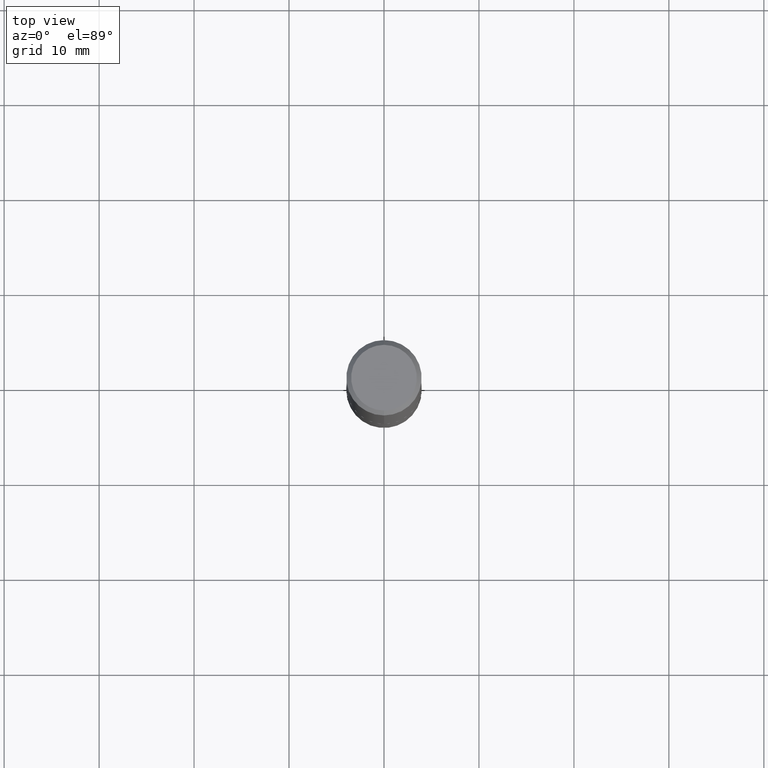
[diagram: clean part render]
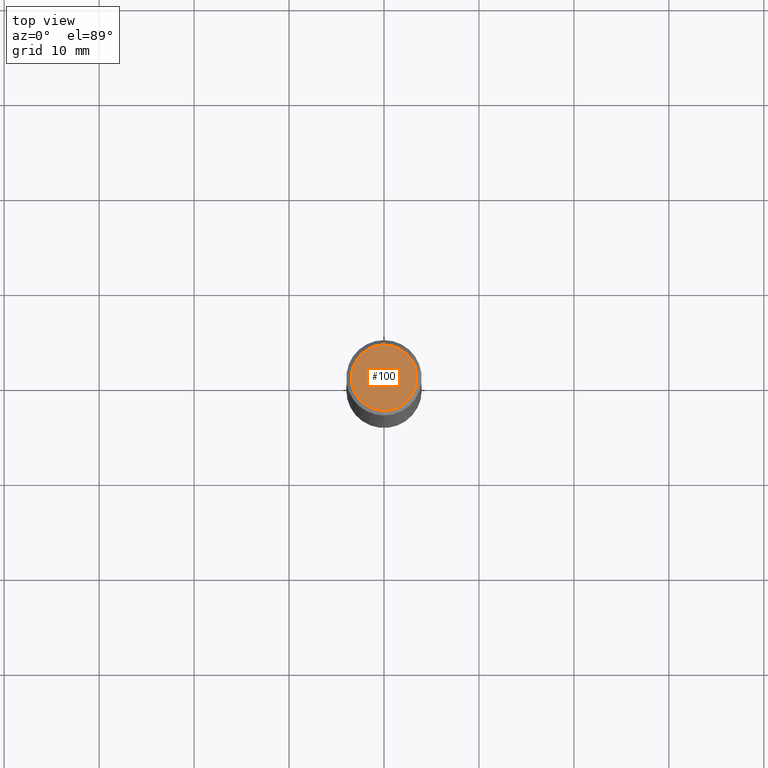
[diagram: same view with one face highlighted and labeled with its STEP entity id]
A machine part, top view. The second image highlights one B-rep face of the part: STEP entity #100.
In plain terms, the highlighted planar face has unit normal (0, -0, -1).
Its self-contained STEP definition (entity closure, byte-faithful):
#44 = DIRECTION ( 'NONE',  ( -6.982962677686265922E-15, -1.000000000000000000, 3.491900563592034843E-15 ) ) ;
#100 = ADVANCED_FACE ( 'NONE', ( #270 ), #405, .F. ) ;
#120 = CIRCLE ( 'NONE', #176, 0.1362500000000001210 ) ;
#150 = DIRECTION ( 'NONE',  ( 2.445176063107630653E-29, -3.491900563592034843E-15, -1.000000000000000000 ) ) ;
#172 = CARTESIAN_POINT ( 'NONE',  ( 1.021258291611617059E-15, 0.1362500000000001210, -5.653530947094876156E-16 ) ) ;
#176 = AXIS2_PLACEMENT_3D ( 'NONE', #213, #367, #44 ) ;
#190 = VERTEX_POINT ( 'NONE', #172 ) ;
#199 = EDGE_CURVE ( 'NONE', #190, #359, #120, .T. ) ;
#213 = CARTESIAN_POINT ( 'NONE',  ( 2.190428889620163364E-45, -3.128101894001013777E-31, -8.958164292007245599E-17 ) ) ;
#227 = EDGE_LOOP ( 'NONE', ( #276, #318 ) ) ;
#270 = FACE_OUTER_BOUND ( 'NONE', #227, .T. ) ;
#274 = CIRCLE ( 'NONE', #385, 0.1362500000000001210 ) ;
#275 = DIRECTION ( 'NONE',  ( 6.982962677686265922E-15, 1.000000000000000000, -3.491900563592034843E-15 ) ) ;
#276 = ORIENTED_EDGE ( 'NONE', *, *, #199, .T. ) ;
#315 = CARTESIAN_POINT ( 'NONE',  ( 2.190428889620163364E-45, -3.128101894001013777E-31, -8.958164292007245599E-17 ) ) ;
#318 = ORIENTED_EDGE ( 'NONE', *, *, #364, .T. ) ;
#354 = DIRECTION ( 'NONE',  ( -6.982962677686265922E-15, -1.000000000000000000, 3.491900563592034843E-15 ) ) ;
#359 = VERTEX_POINT ( 'NONE', #389 ) ;
#364 = EDGE_CURVE ( 'NONE', #359, #190, #274, .T. ) ;
#365 = AXIS2_PLACEMENT_3D ( 'NONE', #375, #150, #275 ) ;
#367 = DIRECTION ( 'NONE',  ( -2.445176063107630933E-29, 3.491900563592034843E-15, 1.000000000000000000 ) ) ;
#375 = CARTESIAN_POINT ( 'NONE',  ( 9.514286648347545493E-16, 0.1362500000000001210, -5.205622732494513937E-16 ) ) ;
#385 = AXIS2_PLACEMENT_3D ( 'NONE', #315, #388, #354 ) ;
#388 = DIRECTION ( 'NONE',  ( -2.445176063107630933E-29, 3.491900563592034843E-15, 1.000000000000000000 ) ) ;
#389 = CARTESIAN_POINT ( 'NONE',  ( -1.003347832174086672E-15, -0.1362500000000001210, 3.861898088693426789E-16 ) ) ;
#405 = PLANE ( 'NONE',  #365 ) ;